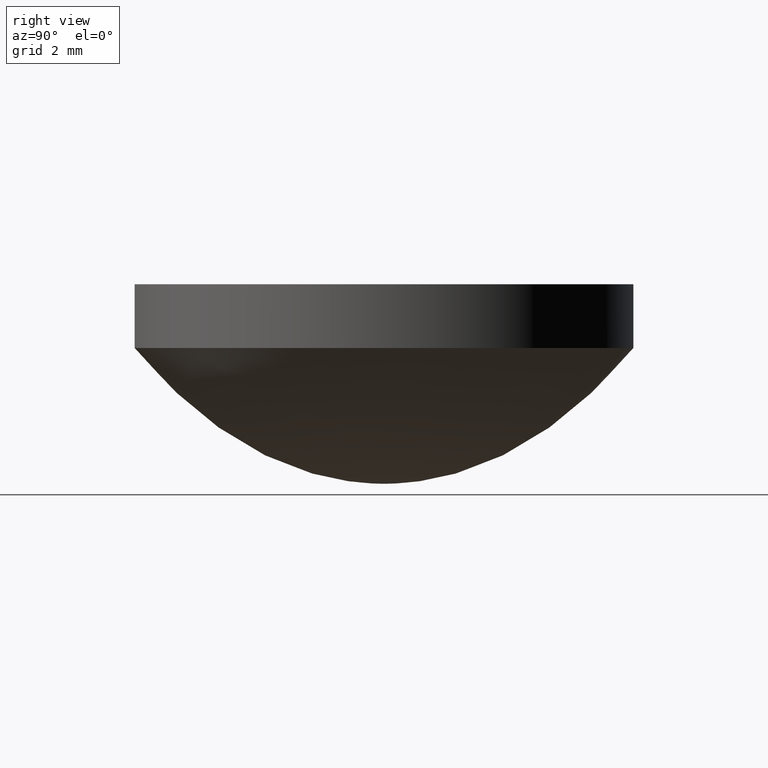
[diagram: clean part render]
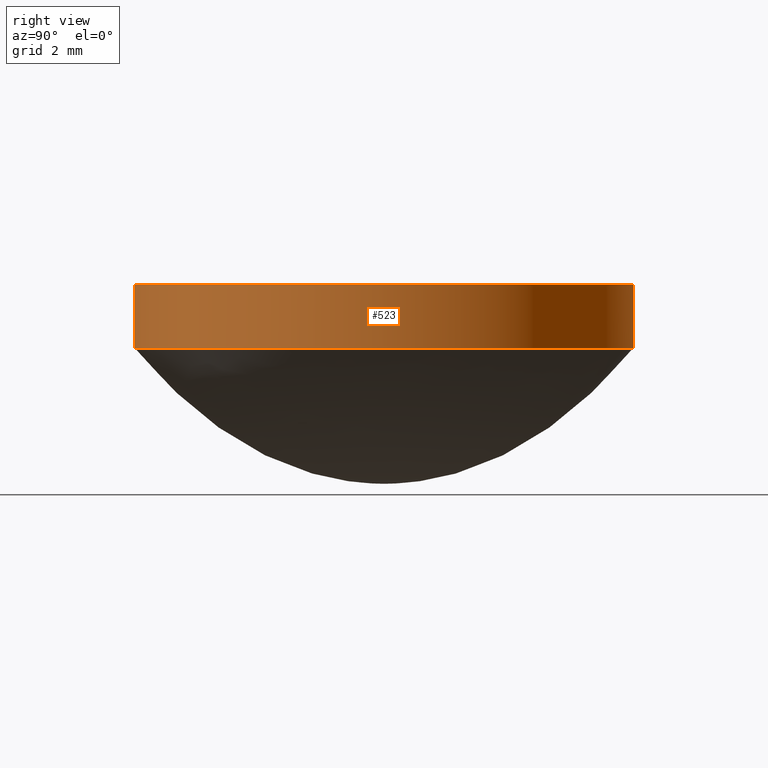
[diagram: same view with one face highlighted and labeled with its STEP entity id]
A machine part, right view. The second image highlights one B-rep face of the part: STEP entity #523.
In plain terms, the highlighted cylindrical surface (partial cylindrical patch) has radius 6.25 mm, axis along (0, 0, -1).
Its self-contained STEP definition (entity closure, byte-faithful):
#6 = VECTOR ( 'NONE', #560, 1000.000000000000000 ) ;
#34 = EDGE_CURVE ( 'NONE', #519, #269, #1048, .T. ) ;
#66 = CARTESIAN_POINT ( 'NONE',  ( 0.000000000000000000, 6.250000000000000000, 3.403336593621870243 ) ) ;
#71 = CYLINDRICAL_SURFACE ( 'NONE', #450, 6.250000000000000000 ) ;
#125 = AXIS2_PLACEMENT_3D ( 'NONE', #794, #388, #722 ) ;
#138 = EDGE_CURVE ( 'NONE', #191, #519, #542, .T. ) ;
#139 = FACE_OUTER_BOUND ( 'NONE', #1017, .T. ) ;
#148 = CARTESIAN_POINT ( 'NONE',  ( 7.654042494670957606E-16, -6.250000000000000000, 5.250000000000000000 ) ) ;
#154 = CARTESIAN_POINT ( 'NONE',  ( 0.000000000000000000, 0.000000000000000000, 5.250000000000000000 ) ) ;
#158 = LINE ( 'NONE', #256, #350 ) ;
#164 = CIRCLE ( 'NONE', #125, 6.250000000000000000 ) ;
#191 = VERTEX_POINT ( 'NONE', #470 ) ;
#237 = EDGE_CURVE ( 'NONE', #269, #765, #164, .T. ) ;
#256 = CARTESIAN_POINT ( 'NONE',  ( 0.000000000000000000, 6.250000000000000000, 5.250000000000000000 ) ) ;
#269 = VERTEX_POINT ( 'NONE', #644 ) ;
#318 = AXIS2_PLACEMENT_3D ( 'NONE', #886, #635, #553 ) ;
#350 = VECTOR ( 'NONE', #917, 1000.000000000000000 ) ;
#357 = ORIENTED_EDGE ( 'NONE', *, *, #237, .T. ) ;
#388 = DIRECTION ( 'NONE',  ( 0.000000000000000000, 0.000000000000000000, 1.000000000000000000 ) ) ;
#450 = AXIS2_PLACEMENT_3D ( 'NONE', #154, #459, #792 ) ;
#459 = DIRECTION ( 'NONE',  ( 0.000000000000000000, 0.000000000000000000, -1.000000000000000000 ) ) ;
#470 = CARTESIAN_POINT ( 'NONE',  ( 0.000000000000000000, 6.250000000000000000, 5.000000000000000000 ) ) ;
#513 = ORIENTED_EDGE ( 'NONE', *, *, #34, .T. ) ;
#519 = VERTEX_POINT ( 'NONE', #878 ) ;
#523 = ADVANCED_FACE ( 'NONE', ( #139 ), #71, .T. ) ;
#542 = CIRCLE ( 'NONE', #318, 6.250000000000000000 ) ;
#553 = DIRECTION ( 'NONE',  ( 0.000000000000000000, 1.000000000000000000, 0.000000000000000000 ) ) ;
#560 = DIRECTION ( 'NONE',  ( 0.000000000000000000, 0.000000000000000000, -1.000000000000000000 ) ) ;
#598 = ORIENTED_EDGE ( 'NONE', *, *, #1049, .F. ) ;
#635 = DIRECTION ( 'NONE',  ( 0.000000000000000000, 0.000000000000000000, -1.000000000000000000 ) ) ;
#644 = CARTESIAN_POINT ( 'NONE',  ( 7.654042494670957606E-16, -6.250000000000000000, 3.403336593621870243 ) ) ;
#722 = DIRECTION ( 'NONE',  ( 0.000000000000000000, 1.000000000000000000, 0.000000000000000000 ) ) ;
#765 = VERTEX_POINT ( 'NONE', #66 ) ;
#792 = DIRECTION ( 'NONE',  ( 0.000000000000000000, 1.000000000000000000, 0.000000000000000000 ) ) ;
#794 = CARTESIAN_POINT ( 'NONE',  ( 0.000000000000000000, 0.000000000000000000, 3.403336593621870243 ) ) ;
#878 = CARTESIAN_POINT ( 'NONE',  ( 7.654042494670957606E-16, -6.250000000000000000, 5.000000000000000000 ) ) ;
#886 = CARTESIAN_POINT ( 'NONE',  ( 0.000000000000000000, 0.000000000000000000, 5.000000000000000000 ) ) ;
#917 = DIRECTION ( 'NONE',  ( 0.000000000000000000, 0.000000000000000000, -1.000000000000000000 ) ) ;
#1017 = EDGE_LOOP ( 'NONE', ( #1021, #513, #357, #598 ) ) ;
#1021 = ORIENTED_EDGE ( 'NONE', *, *, #138, .T. ) ;
#1048 = LINE ( 'NONE', #148, #6 ) ;
#1049 = EDGE_CURVE ( 'NONE', #191, #765, #158, .T. ) ;